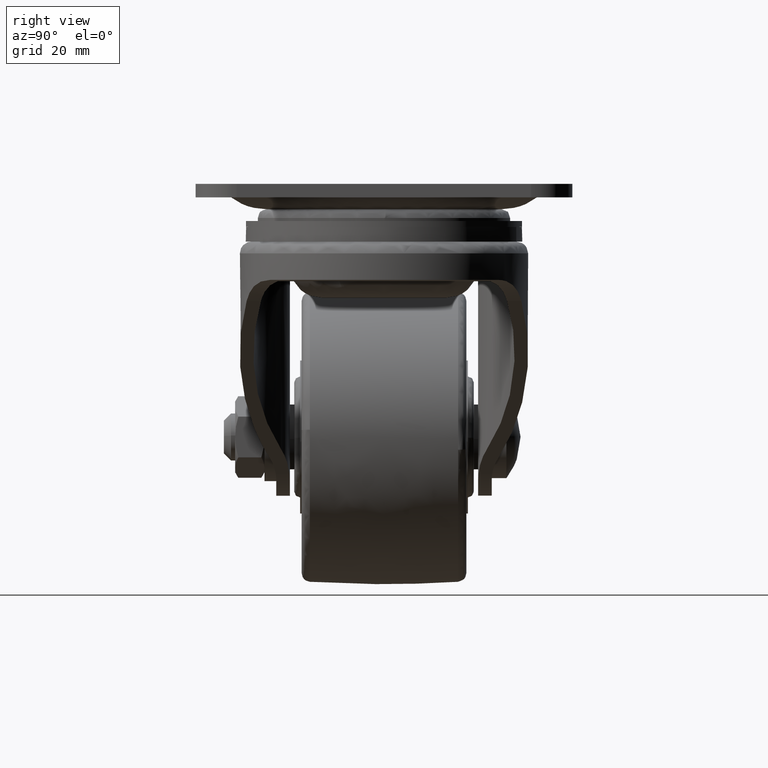
[diagram: clean part render]
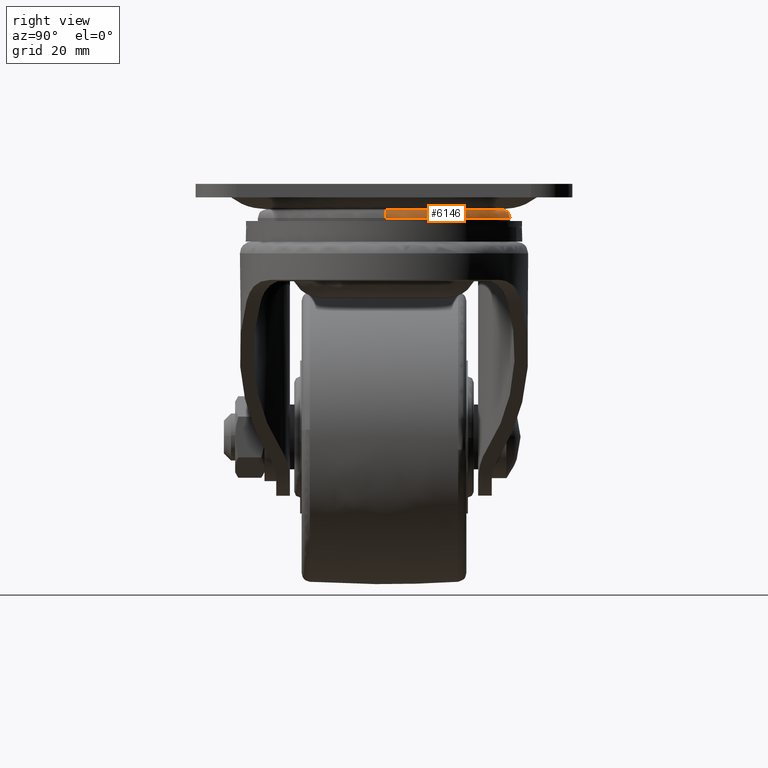
[diagram: same view with one face highlighted and labeled with its STEP entity id]
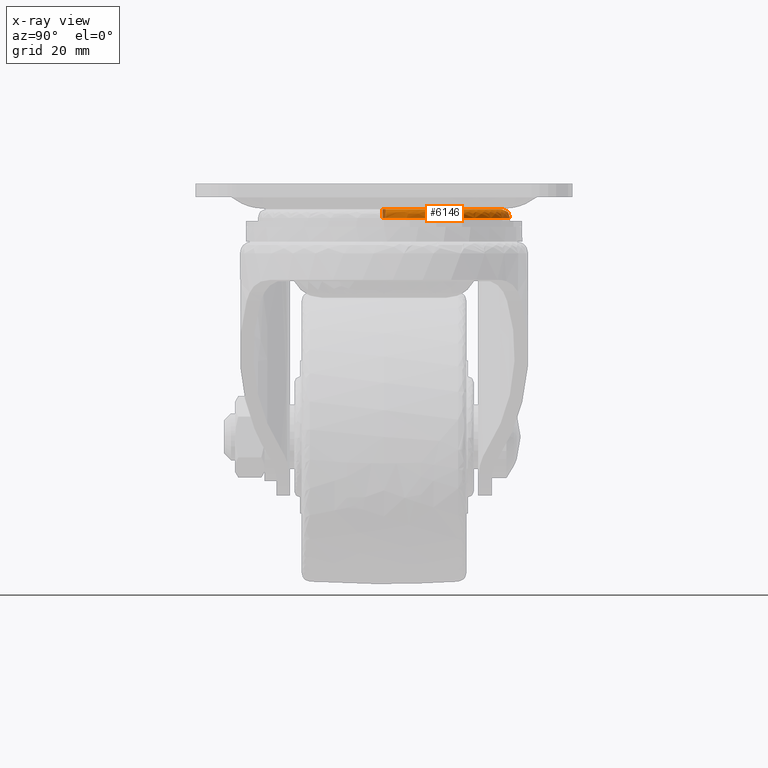
[diagram: x-ray of the same camera — body ghosted, the highlighted face saturated]
A machine part, right view. The second image highlights one B-rep face of the part: STEP entity #6146.
The next image is the same camera in x-ray: the body ghosted, the highlighted face saturated — about 2% of this face is hidden behind the body in this view.
In plain terms, the highlighted face is a freeform B-spline surface patch.
Its self-contained STEP definition (entity closure, byte-faithful):
#5881=CARTESIAN_POINT('',(-19.998420888831550,-0.251320797964462,-4.300000000000098));
#5882=VERTEX_POINT('',#5881);
#5883=CARTESIAN_POINT('',(-20.0,0.0,-4.300000000000099));
#5884=VERTEX_POINT('',#5883);
#5885=CARTESIAN_POINT('',(-19.998420888831557,-0.251320797964462,-4.300000000000098));
#5886=CARTESIAN_POINT('',(-20.000000002379107,-0.125665359986514,-4.300000000000098));
#5887=CARTESIAN_POINT('',(-20.0,0.0,-4.300000000000099));
#5895=(BOUNDED_CURVE()B_SPLINE_CURVE(2,(#5885,#5886,#5887),.UNSPECIFIED.,.F.,.U.)B_SPLINE_CURVE_WITH_KNOTS((3,3),(0.997784295919639,1.0),.UNSPECIFIED.)CURVE()GEOMETRIC_REPRESENTATION_ITEM()RATIONAL_B_SPLINE_CURVE((0.994854295639203,0.997404141199859,1.0))REPRESENTATION_ITEM(''));
#5896=EDGE_CURVE('',#5882,#5884,#5895,.T.);
#5930=CARTESIAN_POINT('',(19.998420888831550,0.251320797964464,-4.300000000000098));
#5931=VERTEX_POINT('',#5930);
#5945=CARTESIAN_POINT('',(-20.0,0.0,-4.300000000000099));
#5946=CARTESIAN_POINT('',(-20.000042323478539,0.937079028683501,-4.300000000000101));
#5947=CARTESIAN_POINT('',(-19.870917269582179,2.770480154338649,-4.300000000000099));
#5948=CARTESIAN_POINT('',(-19.365478083771730,5.167843712285709,-4.300000000000082));
#5949=CARTESIAN_POINT('',(-18.580882116176038,7.528804914106500,-4.300000000000134));
#5950=CARTESIAN_POINT('',(-17.606414394509070,9.598600797856964,-4.300000000000092));
#5951=CARTESIAN_POINT('',(-16.360688586044709,11.562271854736460,-4.300000000000099));
#5952=CARTESIAN_POINT('',(-14.949108911578620,13.358254362147219,-4.300000000000113));
#5953=CARTESIAN_POINT('',(-13.447442567709610,14.860159024170461,-4.300000000000096));
#5954=CARTESIAN_POINT('',(-11.347286338224331,16.542914565713879,-4.300000000000104));
#5955=CARTESIAN_POINT('',(-9.176933715630016,17.855989664834031,-4.300000000000100));
#5956=CARTESIAN_POINT('',(-6.577027219088925,18.937792480658651,-4.300000000000085));
#5957=CARTESIAN_POINT('',(-3.945091526153215,19.681027350614031,-4.300000000000196));
#5958=CARTESIAN_POINT('',(-1.309078378145262,20.021628682109881,-4.299999999999860));
#5959=CARTESIAN_POINT('',(1.546633335045561,19.995903736718141,-4.300000000000206));
#5960=CARTESIAN_POINT('',(4.460960877192420,19.593258177462619,-4.300000000000037));
#5961=CARTESIAN_POINT('',(7.621665881271313,18.596823580678318,-4.300000000000118));
#5962=CARTESIAN_POINT('',(10.345495715544279,17.190696289052589,-4.300000000000095));
#5963=CARTESIAN_POINT('',(12.380233376130789,15.756314913453080,-4.300000000000098));
#5964=CARTESIAN_POINT('',(14.096138886598981,14.248409187445610,-4.300000000000101));
#5965=CARTESIAN_POINT('',(15.769475212635870,12.403916372700129,-4.300000000000093));
#5966=CARTESIAN_POINT('',(17.290240627438870,10.177468924151709,-4.300000000000114));
#5967=CARTESIAN_POINT('',(18.454302615941270,7.838196051500776,-4.300000000000074));
#5968=CARTESIAN_POINT('',(19.242619138384221,5.606263061313966,-4.300000000000127));
#5969=CARTESIAN_POINT('',(19.819816366436640,3.101242233262742,-4.300000000000086));
#5970=CARTESIAN_POINT('',(19.985186725268012,1.310536773571337,-4.300000000000022));
#5971=CARTESIAN_POINT('',(19.998420888831550,0.251320797964464,-4.300000000000098));
#5972=B_SPLINE_CURVE_WITH_KNOTS('',3,(#5945,#5946,#5947,#5948,#5949,#5950,#5951,#5952,#5953,#5954,#5955,#5956,#5957,#5958,#5959,#5960,#5961,#5962,#5963,#5964,#5965,#5966,#5967,#5968,#5969,#5970,#5971),.UNSPECIFIED.,.F.,.U.,(4,1,1,1,1,1,1,1,1,1,1,1,1,1,1,1,1,1,1,1,1,1,1,1,4),(0.000000066066029,2.811235412450074,5.500241059056400,7.333634844714567,10.267129411118431,12.345001416089010,14.300651308529361,17.111897062304319,18.700864833843539,22.367709187988549,24.690041851601240,27.134573523461071,30.556978048375559,32.634775541804281,35.690471753313261,39.357314320534861,42.535248682590421,44.857594746309232,46.813239528611483,49.380026951935079,52.313511436280251,54.880294268366526,57.202611258914253,59.402737279078863,62.580623049914180),.UNSPECIFIED.);
#5973=EDGE_CURVE('',#5884,#5931,#5972,.T.);
#6044=CARTESIAN_POINT('',(-19.894123473486943,-0.250010088757778,-4.303630950538534));
#6045=CARTESIAN_POINT('',(-20.144133562244715,19.644113384729163,-4.303630950538534));
#6046=CARTESIAN_POINT('',(-0.250010088757779,19.894123473486943,-4.303630950538534));
#6047=CARTESIAN_POINT('',(19.644113384729163,20.144133562244715,-4.303630950538534));
#6048=CARTESIAN_POINT('',(19.894123473486943,0.250010088757781,-4.303630950538534));
#6049=CARTESIAN_POINT('',(-21.614599005963910,-0.271631360041904,-4.183694306381665));
#6050=CARTESIAN_POINT('',(-21.886230366005812,21.342967645922002,-4.183694306381664));
#6051=CARTESIAN_POINT('',(-0.271631360041905,21.614599005963910,-4.183694306381665));
#6052=CARTESIAN_POINT('',(21.342967645922002,21.886230366005812,-4.183694306381664));
#6053=CARTESIAN_POINT('',(21.614599005963910,0.271631360041906,-4.183694306381665));
#6054=CARTESIAN_POINT('',(-21.494671783625996,-0.270124230786316,-5.904305687763055));
#6055=CARTESIAN_POINT('',(-21.764796014412322,21.224547552839688,-5.904305687763055));
#6056=CARTESIAN_POINT('',(-0.270124230786317,21.494671783625996,-5.904305687763055));
#6057=CARTESIAN_POINT('',(21.224547552839688,21.764796014412322,-5.904305687763055));
#6058=CARTESIAN_POINT('',(21.494671783625996,0.270124230786318,-5.904305687763055));
#6066=(BOUNDED_SURFACE()B_SPLINE_SURFACE(2,2,((#6044,#6049,#6054),(#6045,#6050,#6055),(#6046,#6051,#6056),(#6047,#6052,#6057),(#6048,#6053,#6058)),.UNSPECIFIED.,.F.,.F.,.U.)B_SPLINE_SURFACE_WITH_KNOTS((3,2,3),(3,3),(0.0,35.616350403447960,71.232700806895920),(0.0,2.733560875348743),.UNSPECIFIED.)GEOMETRIC_REPRESENTATION_ITEM()RATIONAL_B_SPLINE_SURFACE(((0.916342095240933,0.601326568744382,0.916342106857795),(0.647951709431553,0.425202094466791,0.647951717645915),(0.916342095240933,0.601326568744382,0.916342106857795),(0.647951709431553,0.425202094466791,0.647951717645915),(0.916342095240933,0.601326568744382,0.916342106857795)))REPRESENTATION_ITEM('')SURFACE());
#6067=CARTESIAN_POINT('',(-21.498302450381619,-0.270169857526014,-5.799999999443226));
#6068=VERTEX_POINT('',#6067);
#6069=CARTESIAN_POINT('',(-21.500000000000000,0.0,-5.800000000000099));
#6070=VERTEX_POINT('',#6069);
#6071=CARTESIAN_POINT('',(-21.498302450381615,-0.270169857526014,-5.799999999443226));
#6072=CARTESIAN_POINT('',(-21.500000000000000,-0.135090261842599,-5.799999999721663));
#6073=CARTESIAN_POINT('',(-21.500000000000000,0.0,-5.800000000000099));
#6081=(BOUNDED_CURVE()B_SPLINE_CURVE(2,(#6071,#6072,#6073),.UNSPECIFIED.,.F.,.U.)B_SPLINE_CURVE_WITH_KNOTS((3,3),(0.997784295921451,1.0),.UNSPECIFIED.)CURVE()GEOMETRIC_REPRESENTATION_ITEM()RATIONAL_B_SPLINE_CURVE((0.994854295643373,0.997404141201982,1.0))REPRESENTATION_ITEM(''));
#6082=EDGE_CURVE('',#6068,#6070,#6081,.T.);
#6083=ORIENTED_EDGE('',*,*,#6082,.F.);
#6084=CARTESIAN_POINT('',(-19.998420888831557,-0.251320797964462,-4.300000000000097));
#6085=CARTESIAN_POINT('',(-21.498302449823509,-0.270169857620856,-4.300000004758702));
#6086=CARTESIAN_POINT('',(-21.498302450381615,-0.270169857526014,-5.799999999443226));
#6094=(BOUNDED_CURVE()B_SPLINE_CURVE(2,(#6084,#6085,#6086),.UNSPECIFIED.,.F.,.U.)B_SPLINE_CURVE_WITH_KNOTS((3,3),(-1.734750788361977,-0.265249208727362),.UNSPECIFIED.)CURVE()GEOMETRIC_REPRESENTATION_ITEM()RATIONAL_B_SPLINE_CURVE((0.889029722408211,0.628638946869775,0.889029723439730))REPRESENTATION_ITEM(''));
#6095=EDGE_CURVE('',#5882,#6068,#6094,.T.);
#6096=ORIENTED_EDGE('',*,*,#6095,.F.);
#6097=ORIENTED_EDGE('',*,*,#5896,.T.);
#6098=ORIENTED_EDGE('',*,*,#5973,.T.);
#6099=CARTESIAN_POINT('',(21.498302450381619,0.270169857526009,-5.799999999443225));
#6100=VERTEX_POINT('',#6099);
#6101=CARTESIAN_POINT('',(19.998420888831554,0.251320797964464,-4.300000000000098));
#6102=CARTESIAN_POINT('',(21.498302449823505,0.270169857620854,-4.300000004758692));
#6103=CARTESIAN_POINT('',(21.498302450381619,0.270169857526009,-5.799999999443226));
#6111=(BOUNDED_CURVE()B_SPLINE_CURVE(2,(#6101,#6102,#6103),.UNSPECIFIED.,.F.,.U.)B_SPLINE_CURVE_WITH_KNOTS((3,3),(-1.734750788361982,-0.265249208727362),.UNSPECIFIED.)CURVE()GEOMETRIC_REPRESENTATION_ITEM()RATIONAL_B_SPLINE_CURVE((0.889029722408213,0.628638946869774,0.889029723439730))REPRESENTATION_ITEM(''));
#6112=EDGE_CURVE('',#5931,#6100,#6111,.T.);
#6113=ORIENTED_EDGE('',*,*,#6112,.T.);
#6114=CARTESIAN_POINT('',(-1.686850448452676,21.433724257910661,-5.799999999739070));
#6115=VERTEX_POINT('',#6114);
#6116=CARTESIAN_POINT('',(-1.686850448452676,21.433724257910654,-5.799999999739070));
#6117=CARTESIAN_POINT('',(-0.844727199155731,21.499999999990735,-5.799999999728208));
#6118=CARTESIAN_POINT('',(7.094626E-013,21.499999999990919,-5.799999999717323));
#6119=CARTESIAN_POINT('',(21.231506492974088,21.499999999995641,-5.799999999443730));
#6120=CARTESIAN_POINT('',(21.498302450381615,0.270169857526009,-5.799999999443225));
#6128=(BOUNDED_CURVE()B_SPLINE_CURVE(2,(#6116,#6117,#6118,#6119,#6120),.UNSPECIFIED.,.F.,.U.)B_SPLINE_CURVE_WITH_KNOTS((3,2,3),(0.236331461467857,0.250000000000000,0.497784295921451),.UNSPECIFIED.)CURVE()GEOMETRIC_REPRESENTATION_ITEM()RATIONAL_B_SPLINE_CURVE((0.969723691822622,0.983986311011380,1.0,0.709702639984565,0.994854295643373))REPRESENTATION_ITEM(''));
#6129=EDGE_CURVE('',#6115,#6100,#6128,.T.);
#6130=ORIENTED_EDGE('',*,*,#6129,.F.);
#6131=CARTESIAN_POINT('',(-21.500000000000000,0.0,-5.800000000000099));
#6132=CARTESIAN_POINT('',(-21.499999999999631,19.874414275006032,-5.799999999997071));
#6133=CARTESIAN_POINT('',(-1.686850448452676,21.433724257910654,-5.799999999739070));
#6141=(BOUNDED_CURVE()B_SPLINE_CURVE(2,(#6131,#6132,#6133),.UNSPECIFIED.,.F.,.U.)B_SPLINE_CURVE_WITH_KNOTS((3,3),(0.0,0.236331461467857),.UNSPECIFIED.)CURVE()GEOMETRIC_REPRESENTATION_ITEM()RATIONAL_B_SPLINE_CURVE((1.0,0.723120470175167,0.969723691822622))REPRESENTATION_ITEM(''));
#6142=EDGE_CURVE('',#6070,#6115,#6141,.T.);
#6143=ORIENTED_EDGE('',*,*,#6142,.F.);
#6144=EDGE_LOOP('',(#6083,#6096,#6097,#6098,#6113,#6130,#6143));
#6145=FACE_OUTER_BOUND('',#6144,.T.);
#6146=ADVANCED_FACE('',(#6145),#6066,.T.);